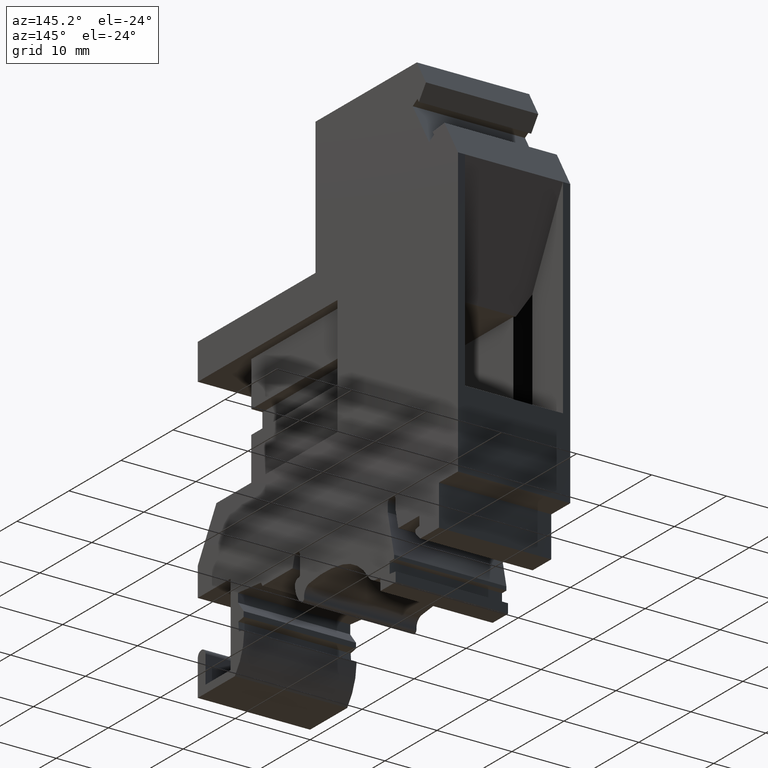
[diagram: clean part render]
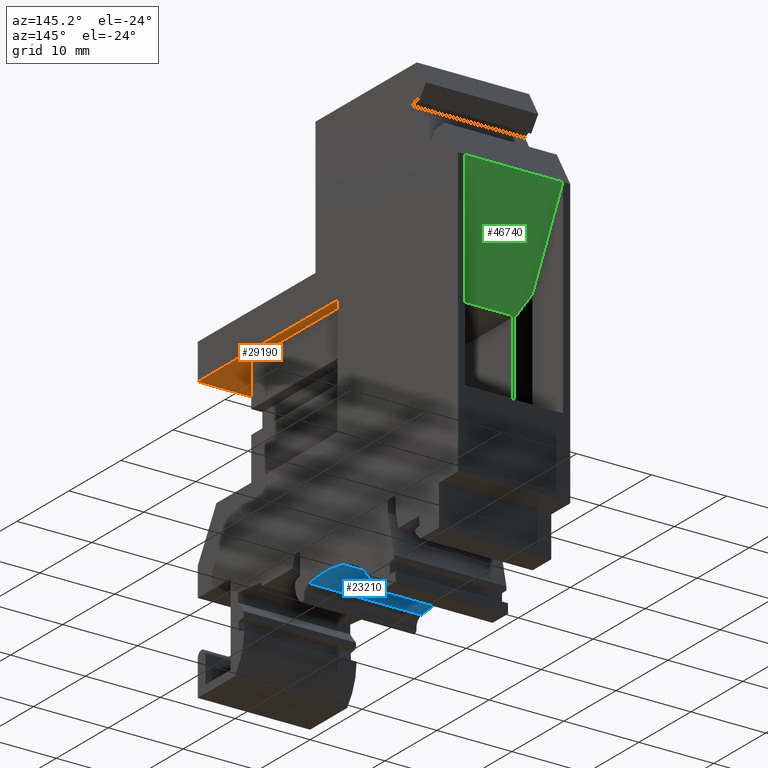
[diagram: same view with three faces highlighted in distinct colors, each labeled with its STEP entity id]
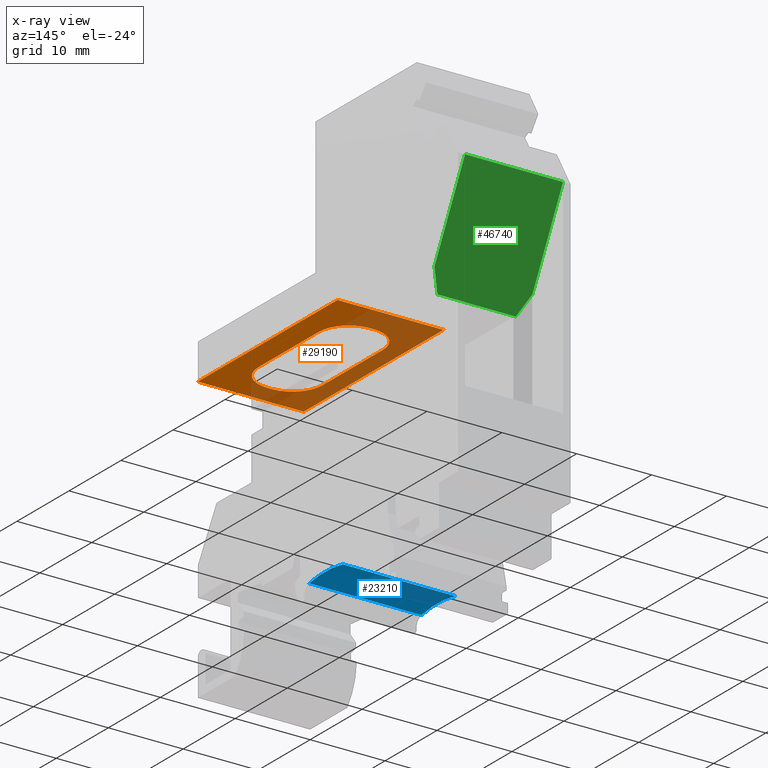
[diagram: x-ray of the same camera — body ghosted, the three highlighted faces saturated]
A machine part, auxiliary view with three faces highlighted in distinct colors.
The next image is the same camera in x-ray (body ghosted, the three faces saturated) — at least one of them is partly hidden behind the body in this view.
Their STEP definitions:

[orange] entity #29190 — the highlighted planar face has unit normal (-0, -0, 1).
#2820=CARTESIAN_POINT('',(18.1,-24.15,4.275));
#2830=VERTEX_POINT('',#2820);
#2860=CARTESIAN_POINT('',(18.1,-24.15,0.275));
#2870=DIRECTION('',(0.,1.,0.));
#2880=DIRECTION('',(-1.,0.,0.));
#2890=AXIS2_PLACEMENT_3D('',#2860,#2870,#2880);
#2900=CIRCLE('',#2890,4.);
#2910=CARTESIAN_POINT('',(22.1,-24.15,0.275000000000001));
#2920=VERTEX_POINT('',#2910);
#2930=EDGE_CURVE('',#2830,#2920,#2900,.T.);
#3780=CARTESIAN_POINT('',(6.475,-24.15,4.275));
#3790=VERTEX_POINT('',#3780);
#3820=CARTESIAN_POINT('',(15.2499999999998,-24.15,4.275));
#3830=DIRECTION('',(1.,0.,-1.22464679914735E-16));
#3840=VECTOR('',#3830,1.);
#3850=LINE('',#3820,#3840);
#3860=EDGE_CURVE('',#3790,#2830,#3850,.T.);
#6300=CARTESIAN_POINT('',(2.475,-24.15,-0.274999999999987));
#6310=VERTEX_POINT('',#6300);
#6340=CARTESIAN_POINT('',(2.475,-24.15,1.41969083876132E-14));
#6350=DIRECTION('',(-1.22464679914735E-16,1.22464679914735E-16,-1.));
#6360=VECTOR('',#6350,1.);
#6370=LINE('',#6340,#6360);
#6380=CARTESIAN_POINT('',(2.475,-24.15,0.275000000000001));
#6390=VERTEX_POINT('',#6380);
#6400=EDGE_CURVE('',#6390,#6310,#6370,.T.);
#19840=CARTESIAN_POINT('',(-1.75000000000017,-24.15,6.65));
#19850=VERTEX_POINT('',#19840);
#20260=CARTESIAN_POINT('',(25.1,-24.15,6.65));
#20270=VERTEX_POINT('',#20260);
#20300=CARTESIAN_POINT('',(0.,-24.15,6.65));
#20310=DIRECTION('',(1.,-1.49975978266186E-32,0.));
#20320=VECTOR('',#20310,1.);
#20330=LINE('',#20300,#20320);
#20340=EDGE_CURVE('',#19850,#20270,#20330,.T.);
#21180=CARTESIAN_POINT('',(18.1,-24.15,-4.27499999999999));
#21190=VERTEX_POINT('',#21180);
#21220=CARTESIAN_POINT('',(1.25282033276476E-15,-24.15,-4.27499999999999
));
#21230=DIRECTION('',(-1.,0.,1.22464679914735E-16));
#21240=VECTOR('',#21230,1.);
#21250=LINE('',#21220,#21240);
#21260=CARTESIAN_POINT('',(6.475,-24.15,-4.27499999999999));
#21270=VERTEX_POINT('',#21260);
#21280=EDGE_CURVE('',#21190,#21270,#21250,.T.);
#21540=CARTESIAN_POINT('',(6.475,-24.15,0.275));
#21550=DIRECTION('',(0.,-1.,0.));
#21560=DIRECTION('',(1.,0.,0.));
#21570=AXIS2_PLACEMENT_3D('',#21540,#21550,#21560);
#21580=CIRCLE('',#21570,4.);
#21590=EDGE_CURVE('',#3790,#6390,#21580,.T.);
#22700=CARTESIAN_POINT('',(6.475,-24.15,-0.274999999999987));
#22710=DIRECTION('',(1.49975978266186E-32,1.,1.22464679914735E-16));
#22720=DIRECTION('',(1.,0.,-1.22464679914735E-16));
#22730=AXIS2_PLACEMENT_3D('',#22700,#22710,#22720);
#22740=CIRCLE('',#22730,4.);
#22750=EDGE_CURVE('',#21270,#6310,#22740,.T.);
#23700=CARTESIAN_POINT('',(25.1,-24.15,-7.49999999999998));
#23710=VERTEX_POINT('',#23700);
#23740=CARTESIAN_POINT('',(25.1,-24.15,0.));
#23750=DIRECTION('',(0.,-1.22464679914735E-16,1.));
#23760=VECTOR('',#23750,1.);
#23770=LINE('',#23740,#23760);
#23780=EDGE_CURVE('',#23710,#20270,#23770,.T.);
#25710=CARTESIAN_POINT('',(-1.75000000000017,-24.15,-7.49999999999998));
#25720=VERTEX_POINT('',#25710);
#25750=CARTESIAN_POINT('',(0.,-24.15,-7.49999999999998));
#25760=DIRECTION('',(1.,0.,-1.22464679914735E-16));
#25770=VECTOR('',#25760,1.);
#25780=LINE('',#25750,#25770);
#25790=EDGE_CURVE('',#25720,#23710,#25780,.T.);
#28660=CARTESIAN_POINT('',(22.1,-24.15,-0.274999999999989));
#28670=VERTEX_POINT('',#28660);
#28700=CARTESIAN_POINT('',(18.1,-24.15,-0.274999999999988));
#28710=DIRECTION('',(-1.49975978266186E-32,-1.,-1.22464679914735E-16));
#28720=DIRECTION('',(-1.,0.,1.22464679914735E-16));
#28730=AXIS2_PLACEMENT_3D('',#28700,#28710,#28720);
#28740=CIRCLE('',#28730,4.);
#28750=EDGE_CURVE('',#21190,#28670,#28740,.T.);
#28880=CARTESIAN_POINT('',(22.1,-24.15,1.17935390442865E-14));
#28890=DIRECTION('',(1.49975978266186E-32,1.,1.22464679914735E-16));
#28900=DIRECTION('',(1.,0.,-1.22464679914735E-16));
#28910=AXIS2_PLACEMENT_3D('',#28880,#28890,#28900);
#28920=PLANE('',#28910);
#28930=ORIENTED_EDGE('',*,*,#21590,.F.);
#28940=ORIENTED_EDGE('',*,*,#6400,.F.);
#28950=ORIENTED_EDGE('',*,*,#22750,.T.);
#28960=ORIENTED_EDGE('',*,*,#21280,.T.);
#28970=ORIENTED_EDGE('',*,*,#28750,.F.);
#28980=CARTESIAN_POINT('',(22.1,-24.15,0.));
#28990=DIRECTION('',(0.,0.,-1.));
#29000=VECTOR('',#28990,1.);
#29010=LINE('',#28980,#29000);
#29020=EDGE_CURVE('',#2920,#28670,#29010,.T.);
#29030=ORIENTED_EDGE('',*,*,#29020,.T.);
#29040=ORIENTED_EDGE('',*,*,#2930,.T.);
#29050=ORIENTED_EDGE('',*,*,#3860,.T.);
#29060=EDGE_LOOP('',(#29050,#29040,#29030,#28970,#28960,#28950,#28940,
#28930));
#29070=FACE_BOUND('',#29060,.T.);
#29080=ORIENTED_EDGE('',*,*,#23780,.T.);
#29090=ORIENTED_EDGE('',*,*,#25790,.T.);
#29100=CARTESIAN_POINT('',(-1.75000000000017,-24.15,0.));
#29110=DIRECTION('',(6.12323399573676E-17,-1.22464679914735E-16,1.));
#29120=VECTOR('',#29110,1.);
#29130=LINE('',#29100,#29120);
#29140=EDGE_CURVE('',#25720,#19850,#29130,.T.);
#29150=ORIENTED_EDGE('',*,*,#29140,.F.);
#29160=ORIENTED_EDGE('',*,*,#20340,.F.);
#29170=EDGE_LOOP('',(#29160,#29150,#29090,#29080));
#29180=FACE_OUTER_BOUND('',#29170,.T.);
#29190=ADVANCED_FACE('',(#29070,#29180),#28920,.F.);

[blue] entity #23210 — the highlighted cylindrical surface (partial cylindrical patch) has radius 16.2 mm, axis along (1, -0, 0).
#12560=CARTESIAN_POINT('',(3.67960140651327,-56.1820133379277,
7.50000000000002));
#12570=VERTEX_POINT('',#12560);
#12600=CARTESIAN_POINT('',(0.670000000000005,-72.1,7.50000000000002));
#12610=DIRECTION('',(0.,0.,-1.));
#12620=DIRECTION('',(-1.,0.,0.));
#12630=AXIS2_PLACEMENT_3D('',#12600,#12610,#12620);
#12640=CIRCLE('',#12630,16.2);
#12650=CARTESIAN_POINT('',(-2.79082460430076,-56.2739868236417,
7.50000000000002));
#12660=VERTEX_POINT('',#12650);
#12670=EDGE_CURVE('',#12660,#12570,#12640,.T.);
#22900=CARTESIAN_POINT('',(0.670000000000005,-72.1,7.51500000000002));
#22910=DIRECTION('',(0.,0.,-1.));
#22920=DIRECTION('',(-1.,0.,0.));
#22930=AXIS2_PLACEMENT_3D('',#22900,#22910,#22920);
#22940=CYLINDRICAL_SURFACE('',#22930,16.2);
#22950=CARTESIAN_POINT('',(3.67960140651327,-56.1820133379277,
7.51500000000002));
#22960=DIRECTION('',(0.,0.,-1.));
#22970=VECTOR('',#22960,1.);
#22980=LINE('',#22950,#22970);
#22990=CARTESIAN_POINT('',(3.67960140651327,-56.1820133379277,
-7.49999999999998));
#23000=VERTEX_POINT('',#22990);
#23010=EDGE_CURVE('',#12570,#23000,#22980,.T.);
#23020=ORIENTED_EDGE('',*,*,#23010,.F.);
#23030=CARTESIAN_POINT('',(0.670000000000005,-72.1,-7.49999999999998));
#23040=DIRECTION('',(0.,0.,-1.));
#23050=DIRECTION('',(-1.,0.,0.));
#23060=AXIS2_PLACEMENT_3D('',#23030,#23040,#23050);
#23070=CIRCLE('',#23060,16.2);
#23080=CARTESIAN_POINT('',(-2.79082460430076,-56.2739868236417,
-7.49999999999998));
#23090=VERTEX_POINT('',#23080);
#23100=EDGE_CURVE('',#23090,#23000,#23070,.T.);
#23110=ORIENTED_EDGE('',*,*,#23100,.T.);
#23120=CARTESIAN_POINT('',(-2.79082460430075,-56.2739868236417,
7.51500000000002));
#23130=DIRECTION('',(0.,0.,-1.));
#23140=VECTOR('',#23130,1.);
#23150=LINE('',#23120,#23140);
#23160=EDGE_CURVE('',#12660,#23090,#23150,.T.);
#23170=ORIENTED_EDGE('',*,*,#23160,.T.);
#23180=ORIENTED_EDGE('',*,*,#12670,.F.);
#23190=EDGE_LOOP('',(#23180,#23170,#23110,#23020));
#23200=FACE_OUTER_BOUND('',#23190,.T.);
#23210=ADVANCED_FACE('',(#23200),#22940,.F.);

[green] entity #46740 — the highlighted planar face has unit normal (-0, -0.8877, 0.4605).
#19040=CARTESIAN_POINT('',(-24.9,-14.8832013797941,-6.55499999999998));
#19050=VERTEX_POINT('',#19040);
#19280=CARTESIAN_POINT('',(-24.9,-14.8832013797941,6.52500000000002));
#19290=VERTEX_POINT('',#19280);
#37990=CARTESIAN_POINT('',(-24.9,-14.8832013797941,0.));
#38000=DIRECTION('',(0.,-3.34579727659716E-16,1.));
#38010=VECTOR('',#38000,1.);
#38020=LINE('',#37990,#38010);
#38030=EDGE_CURVE('',#19050,#19290,#38020,.T.);
#43590=CARTESIAN_POINT('',(-19.015,-26.2265571476171,6.52500000000002));
#43600=VERTEX_POINT('',#43590);
#43630=CARTESIAN_POINT('',(-17.9157376961302,-28.3453886505826,
6.52500000000002));
#43640=DIRECTION('',(-0.460518200776747,0.887650261506945,0.));
#43650=VECTOR('',#43640,1.);
#43660=LINE('',#43630,#43650);
#43670=EDGE_CURVE('',#43600,#19290,#43660,.T.);
#44850=CARTESIAN_POINT('',(-23.6694490425873,-17.255092170001,
11.1794490425873));
#44860=DIRECTION('',(-0.418294054516699,0.806263088521334,
0.418294054516699));
#44870=VECTOR('',#44860,1.);
#44880=LINE('',#44850,#44870);
#44890=CARTESIAN_POINT('',(-17.7075063208845,-28.7467552727465,
5.21750632088453));
#44900=VERTEX_POINT('',#44890);
#44910=EDGE_CURVE('',#44900,#43600,#44880,.T.);
#45310=CARTESIAN_POINT('',(-17.7075063208845,-28.7467552727465,
6.13499999999966));
#45320=DIRECTION('',(0.,0.,1.));
#45330=VECTOR('',#45320,1.);
#45340=LINE('',#45310,#45330);
#45350=CARTESIAN_POINT('',(-17.7075063208845,-28.7467552727465,
-5.24750632088451));
#45360=VERTEX_POINT('',#45350);
#45370=EDGE_CURVE('',#45360,#44900,#45340,.T.);
#46490=CARTESIAN_POINT('',(-24.9,-14.8832013797941,-0.0149999999999801))
;
#46500=DIRECTION('',(0.887650261506945,0.460518200776747,-0.));
#46510=DIRECTION('',(-0.460518200776747,0.887650261506945,0.));
#46520=AXIS2_PLACEMENT_3D('',#46490,#46500,#46510);
#46530=PLANE('',#46520);
#46540=ORIENTED_EDGE('',*,*,#45370,.T.);
#46550=CARTESIAN_POINT('',(-23.6694490425873,-17.255092170001,
-11.2094490425873));
#46560=DIRECTION('',(-0.418294054516699,0.806263088521334,
-0.418294054516699));
#46570=VECTOR('',#46560,1.);
#46580=LINE('',#46550,#46570);
#46590=CARTESIAN_POINT('',(-19.015,-26.2265571476171,-6.55499999999999))
;
#46600=VERTEX_POINT('',#46590);
#46610=EDGE_CURVE('',#45360,#46600,#46580,.T.);
#46620=ORIENTED_EDGE('',*,*,#46610,.F.);
#46630=CARTESIAN_POINT('',(-17.9157376961302,-28.3453886505826,
-6.55499999999998));
#46640=DIRECTION('',(-0.460518200776747,0.887650261506945,
1.08705805151679E-16));
#46650=VECTOR('',#46640,1.);
#46660=LINE('',#46630,#46650);
#46670=EDGE_CURVE('',#46600,#19050,#46660,.T.);
#46680=ORIENTED_EDGE('',*,*,#46670,.F.);
#46690=ORIENTED_EDGE('',*,*,#38030,.F.);
#46700=ORIENTED_EDGE('',*,*,#43670,.T.);
#46710=ORIENTED_EDGE('',*,*,#44910,.T.);
#46720=EDGE_LOOP('',(#46710,#46700,#46690,#46680,#46620,#46540));
#46730=FACE_OUTER_BOUND('',#46720,.T.);
#46740=ADVANCED_FACE('',(#46730),#46530,.F.);